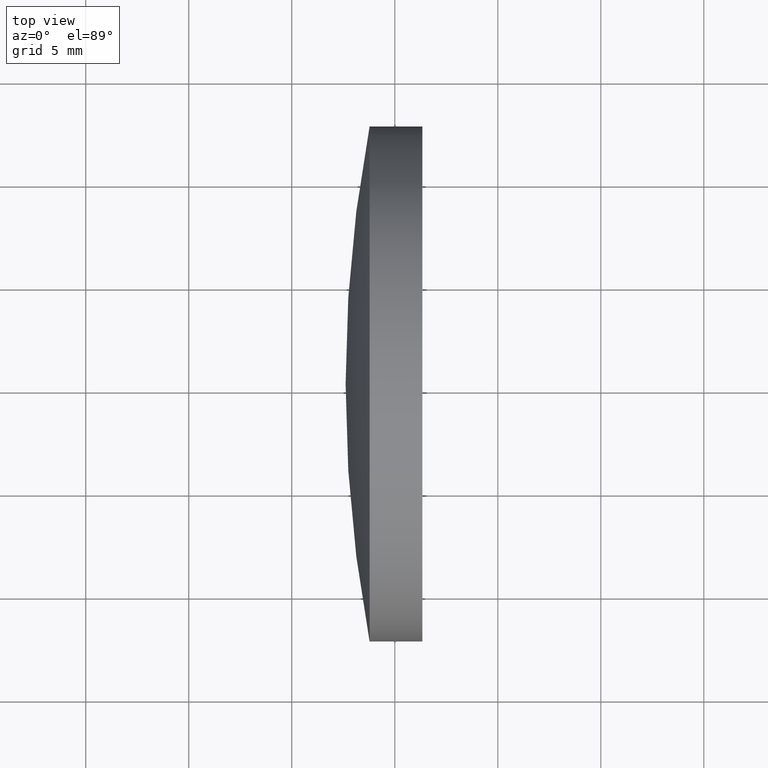
[diagram: clean part render]
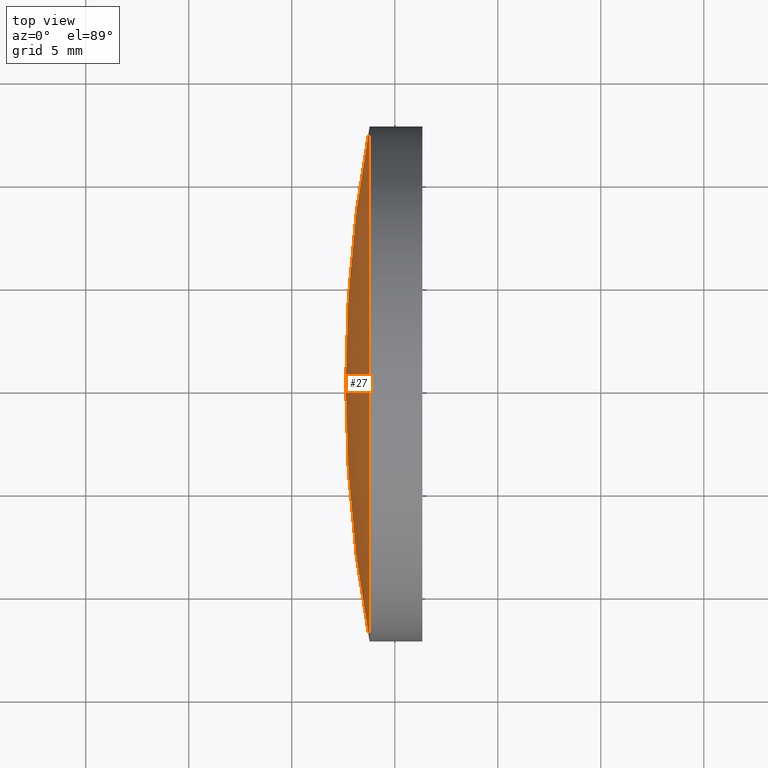
[diagram: same view with one face highlighted and labeled with its STEP entity id]
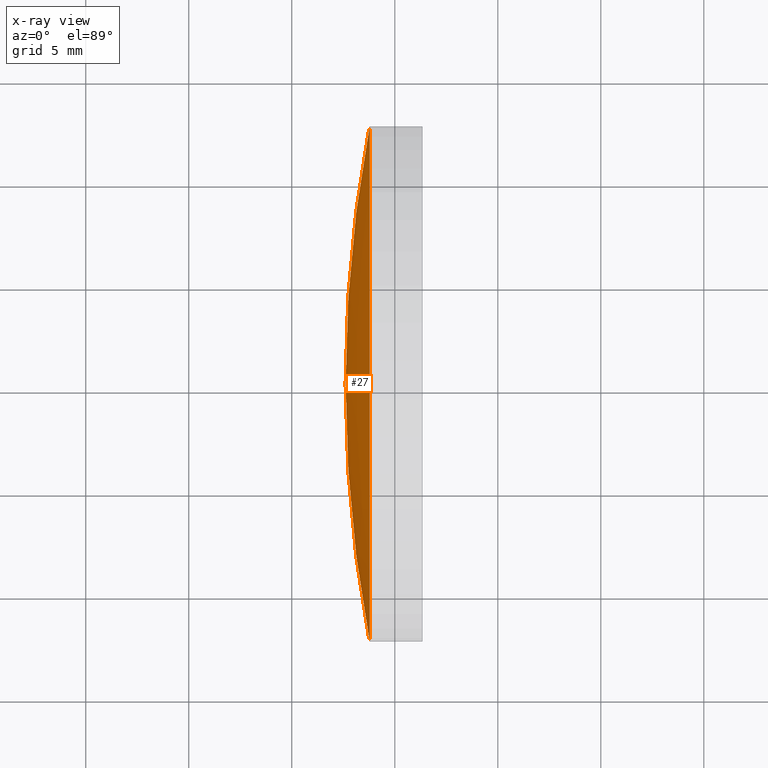
[diagram: x-ray of the same camera — body ghosted, the highlighted face saturated]
A machine part, top view. The second image highlights one B-rep face of the part: STEP entity #27.
The next image is the same camera in x-ray: the body ghosted, the highlighted face saturated — about 0% of this face is hidden behind the body in this view.
In plain terms, the highlighted spherical surface has radius 67.7 mm.
Its self-contained STEP definition (entity closure, byte-faithful):
#2 = DIRECTION ( 'NONE',  ( -8.199579206980475300E-016, 1.000000000000000000, 0.0000000000000000000 ) ) ;
#3 = CARTESIAN_POINT ( 'NONE',  ( 190.3121936984948100, 65.21684047094034000, 0.0000000000000000000 ) ) ;
#15 = CIRCLE ( 'NONE', #37, 67.70000000000001700 ) ;
#21 = CIRCLE ( 'NONE', #87, 12.49999999999999100 ) ;
#22 = CARTESIAN_POINT ( 'NONE',  ( 123.7761884081259000, 65.21684047094032600, 0.0000000000000000000 ) ) ;
#24 = EDGE_LOOP ( 'NONE', ( #111, #54, #51 ) ) ;
#27 = ADVANCED_FACE ( 'NONE', ( #91 ), #104, .T. ) ;
#37 = AXIS2_PLACEMENT_3D ( 'NONE', #147, #190, #73 ) ;
#44 = EDGE_CURVE ( 'NONE', #106, #52, #15, .T. ) ;
#48 = CARTESIAN_POINT ( 'NONE',  ( 123.7761884081258800, 77.71684047094031200, 0.0000000000000000000 ) ) ;
#51 = ORIENTED_EDGE ( 'NONE', *, *, #44, .T. ) ;
#52 = VERTEX_POINT ( 'NONE', #98 ) ;
#54 = ORIENTED_EDGE ( 'NONE', *, *, #95, .T. ) ;
#68 = AXIS2_PLACEMENT_3D ( 'NONE', #74, #183, #2 ) ;
#73 = DIRECTION ( 'NONE',  ( 1.000000000000000000, 0.0000000000000000000, 0.0000000000000000000 ) ) ;
#74 = CARTESIAN_POINT ( 'NONE',  ( 190.3121936984948100, 65.21684047094034000, 0.0000000000000000000 ) ) ;
#87 = AXIS2_PLACEMENT_3D ( 'NONE', #22, #131, #185 ) ;
#89 = EDGE_CURVE ( 'NONE', #129, #52, #157, .T. ) ;
#91 = FACE_OUTER_BOUND ( 'NONE', #24, .T. ) ;
#95 = EDGE_CURVE ( 'NONE', #129, #106, #21, .T. ) ;
#98 = CARTESIAN_POINT ( 'NONE',  ( 122.6121936984947900, 65.21684047094029800, 0.0000000000000000000 ) ) ;
#104 = SPHERICAL_SURFACE ( 'NONE', #68, 67.70000000000001700 ) ;
#106 = VERTEX_POINT ( 'NONE', #48 ) ;
#111 = ORIENTED_EDGE ( 'NONE', *, *, #89, .F. ) ;
#117 = DIRECTION ( 'NONE',  ( 0.0000000000000000000, 1.000000000000000000, 1.224646799147353200E-016 ) ) ;
#126 = AXIS2_PLACEMENT_3D ( 'NONE', #3, #151, #117 ) ;
#129 = VERTEX_POINT ( 'NONE', #130 ) ;
#130 = CARTESIAN_POINT ( 'NONE',  ( 123.7761884081259000, 52.71684047094031200, -1.530808498934189900E-015 ) ) ;
#131 = DIRECTION ( 'NONE',  ( -1.000000000000000000, -6.937607244762875000E-016, -0.0000000000000000000 ) ) ;
#147 = CARTESIAN_POINT ( 'NONE',  ( 190.3121936984948100, 65.21684047094034000, 0.0000000000000000000 ) ) ;
#151 = DIRECTION ( 'NONE',  ( -8.496118506040342700E-032, 1.224646799147353200E-016, -1.000000000000000000 ) ) ;
#157 = CIRCLE ( 'NONE', #126, 67.70000000000001700 ) ;
#183 = DIRECTION ( 'NONE',  ( -0.0000000000000000000, 0.0000000000000000000, -1.000000000000000000 ) ) ;
#185 = DIRECTION ( 'NONE',  ( 1.110223024625157300E-015, -1.000000000000000000, 0.0000000000000000000 ) ) ;
#190 = DIRECTION ( 'NONE',  ( -0.0000000000000000000, 0.0000000000000000000, 1.000000000000000000 ) ) ;